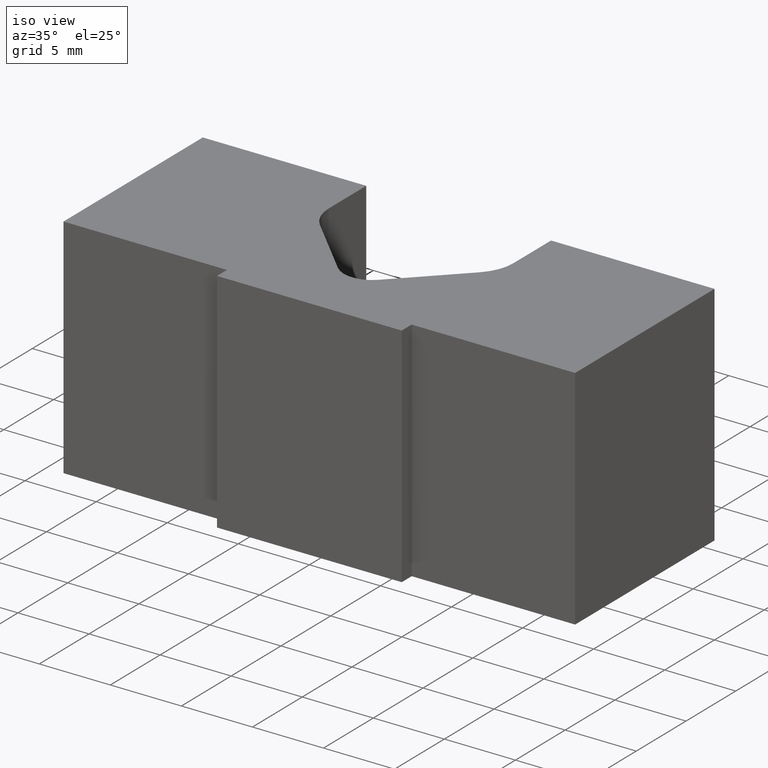
[diagram: clean part render]
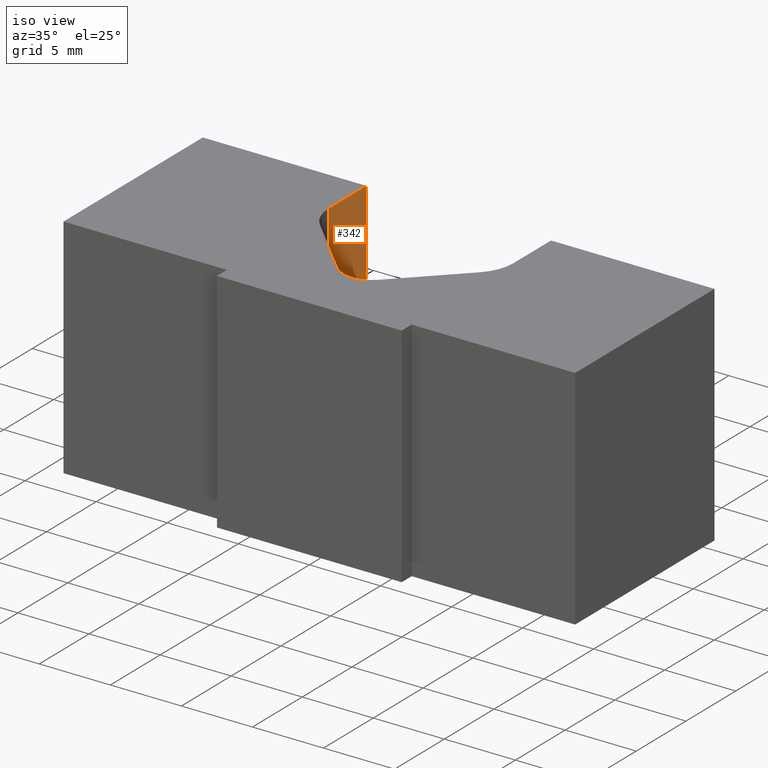
[diagram: same view with one face highlighted and labeled with its STEP entity id]
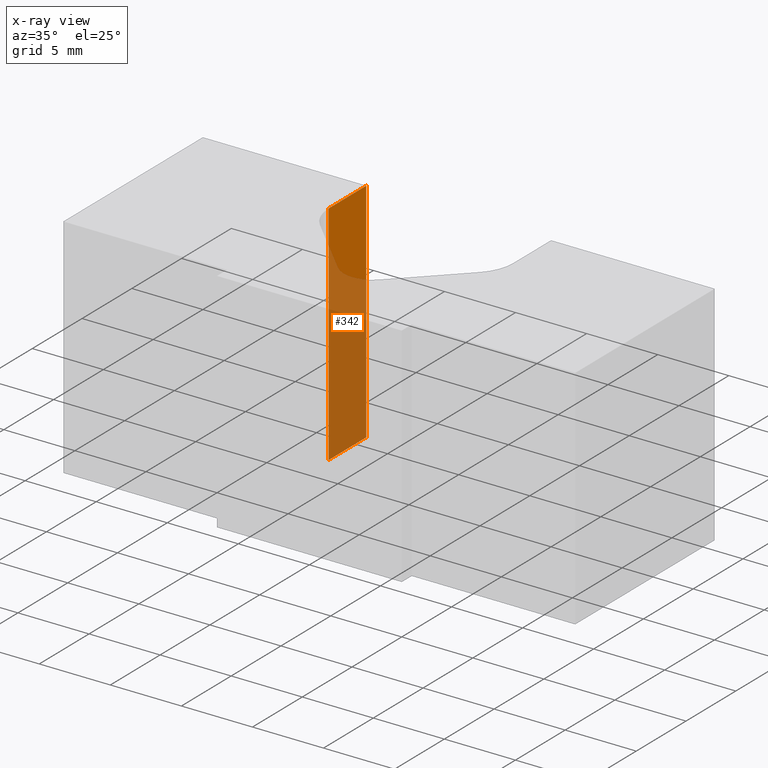
[diagram: x-ray of the same camera — body ghosted, the highlighted face saturated]
A machine part, iso view. The second image highlights one B-rep face of the part: STEP entity #342.
The next image is the same camera in x-ray: the body ghosted, the highlighted face saturated — about 70% of this face is hidden behind the body in this view.
In plain terms, the highlighted planar face has unit normal (1, 0, 0).
Its self-contained STEP definition (entity closure, byte-faithful):
#25=FACE_OUTER_BOUND('',#43,.T.);
#43=EDGE_LOOP('',(#264,#265,#266,#267));
#68=LINE('',#512,#110);
#85=LINE('',#551,#127);
#86=LINE('',#554,#128);
#87=LINE('',#555,#129);
#110=VECTOR('',#412,10.);
#127=VECTOR('',#447,10.);
#128=VECTOR('',#450,10.);
#129=VECTOR('',#451,10.);
#152=VERTEX_POINT('',#509);
#153=VERTEX_POINT('',#511);
#166=VERTEX_POINT('',#549);
#167=VERTEX_POINT('',#553);
#184=EDGE_CURVE('',#153,#152,#68,.T.);
#204=EDGE_CURVE('',#166,#152,#85,.T.);
#205=EDGE_CURVE('',#166,#167,#86,.T.);
#206=EDGE_CURVE('',#167,#153,#87,.T.);
#264=ORIENTED_EDGE('',*,*,#205,.T.);
#265=ORIENTED_EDGE('',*,*,#206,.T.);
#266=ORIENTED_EDGE('',*,*,#184,.T.);
#267=ORIENTED_EDGE('',*,*,#204,.F.);
#327=PLANE('',#386);
#342=ADVANCED_FACE('',(#25),#327,.T.);
#386=AXIS2_PLACEMENT_3D('',#552,#448,#449);
#412=DIRECTION('',(-2.9326087007726E-16,1.,0.));
#447=DIRECTION('',(0.,0.,-1.));
#448=DIRECTION('center_axis',(1.,2.9326087007726E-16,0.));
#449=DIRECTION('ref_axis',(0.,0.,-1.));
#450=DIRECTION('',(2.9326087007726E-16,-1.,0.));
#451=DIRECTION('',(0.,0.,-1.));
#509=CARTESIAN_POINT('',(-6.5,15.,-8.));
#511=CARTESIAN_POINT('',(-6.5,11.2142135623731,-8.));
#512=CARTESIAN_POINT('',(-6.5,15.,-8.));
#549=CARTESIAN_POINT('',(-6.5,15.,8.));
#551=CARTESIAN_POINT('',(-6.5,15.,0.));
#552=CARTESIAN_POINT('Origin',(-6.5,15.,0.));
#553=CARTESIAN_POINT('',(-6.5,11.2142135623731,8.));
#554=CARTESIAN_POINT('',(-6.5,15.,8.));
#555=CARTESIAN_POINT('',(-6.5,11.2142135623731,0.));